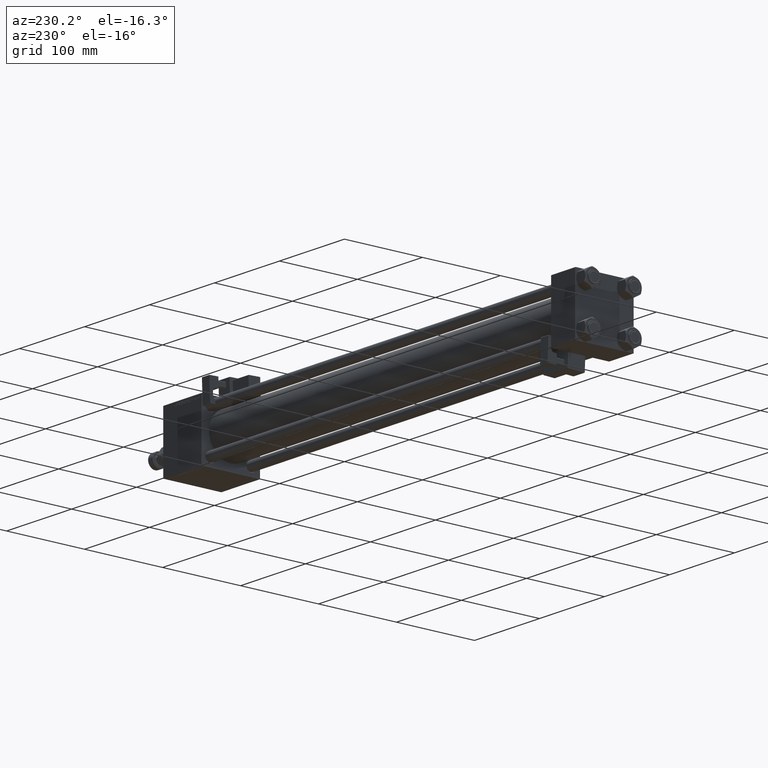
[diagram: clean part render]
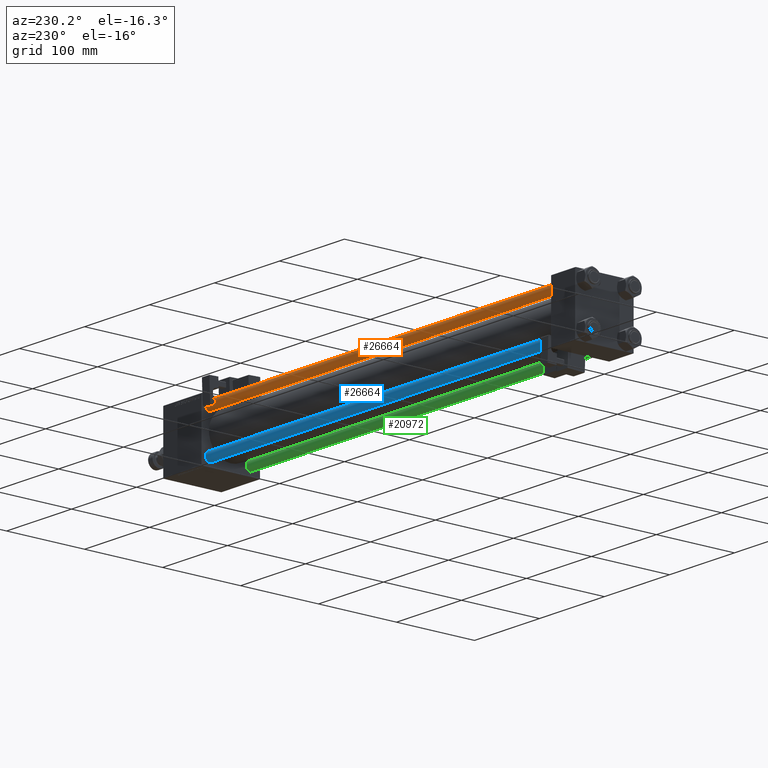
[diagram: same view with three faces highlighted in distinct colors, each labeled with its STEP entity id]
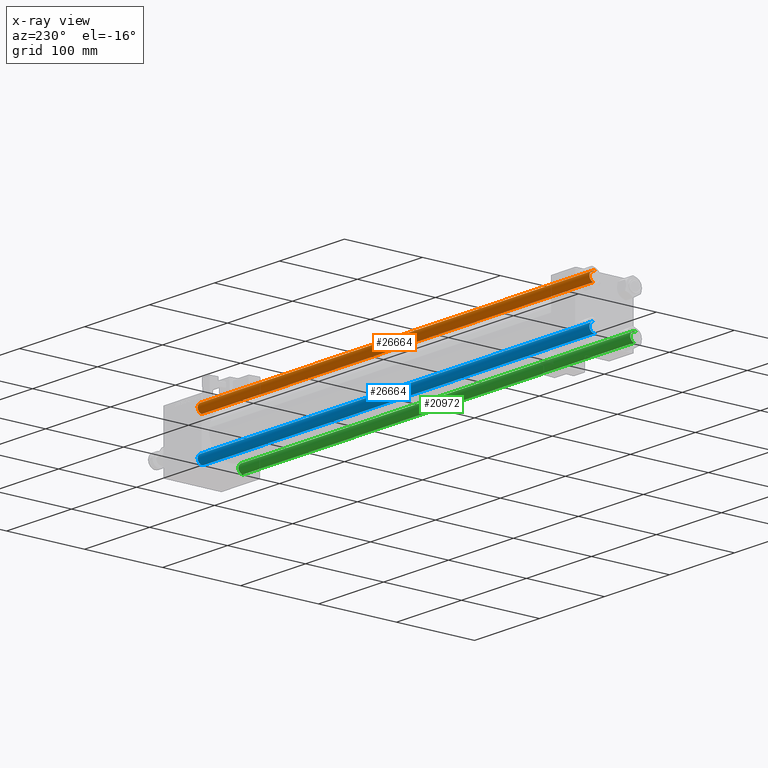
[diagram: x-ray of the same camera — body ghosted, the three highlighted faces saturated]
A machine part, auxiliary view with three faces highlighted in distinct colors.
The next image is the same camera in x-ray (body ghosted, the three faces saturated) — at least one of them is partly hidden behind the body in this view.
Their STEP definitions:

[orange] entity #26664 — the highlighted cylindrical surface (edge-blend (fillet) strip) has radius 6 mm, axis along (-1, 0, 0).
#847 = VECTOR ( 'NONE', #46413, 1000.000000000000000 ) ;
#1131 = AXIS2_PLACEMENT_3D ( 'NONE', #2371, #18821, #52542 ) ;
#2371 = CARTESIAN_POINT ( 'NONE',  ( 0.000000000000000000, 0.000000000000000000, 0.4999999999999449329 ) ) ;
#3285 = VERTEX_POINT ( 'NONE', #34039 ) ;
#12432 = CARTESIAN_POINT ( 'NONE',  ( -6.000000000000000888, 0.000000000000000000, 604.0000000000000000 ) ) ;
#13634 = ORIENTED_EDGE ( 'NONE', *, *, #17876, .F. ) ;
#13709 = CARTESIAN_POINT ( 'NONE',  ( -6.000000000000000888, 0.000000000000000000, 603.5000000000001137 ) ) ;
#17876 = EDGE_CURVE ( 'NONE', #34839, #3285, #53565, .T. ) ;
#17902 = CARTESIAN_POINT ( 'NONE',  ( 6.000000000000000888, 7.347880794884120722E-16, 604.0000000000000000 ) ) ;
#18821 = DIRECTION ( 'NONE',  ( -0.000000000000000000, -0.000000000000000000, 1.000000000000000000 ) ) ;
#19506 = EDGE_CURVE ( 'NONE', #19996, #3285, #29136, .T. ) ;
#19996 = VERTEX_POINT ( 'NONE', #22019 ) ;
#20188 = DIRECTION ( 'NONE',  ( 1.000000000000000000, 0.000000000000000000, 0.000000000000000000 ) ) ;
#21941 = CARTESIAN_POINT ( 'NONE',  ( 6.000000000000000888, 7.347880794884120722E-16, 603.5000000000001137 ) ) ;
#22019 = CARTESIAN_POINT ( 'NONE',  ( 6.000000000000000888, 7.347880794884120722E-16, 0.4999999999999449329 ) ) ;
#24643 = ORIENTED_EDGE ( 'NONE', *, *, #38434, .T. ) ;
#24861 = CARTESIAN_POINT ( 'NONE',  ( 0.000000000000000000, 0.000000000000000000, 604.0000000000000000 ) ) ;
#25529 = ORIENTED_EDGE ( 'NONE', *, *, #19506, .T. ) ;
#26664 = ADVANCED_FACE ( 'NONE', ( #33372 ), #33097, .T. ) ;
#29136 = CIRCLE ( 'NONE', #1131, 6.000000000000000888 ) ;
#29203 = DIRECTION ( 'NONE',  ( 0.000000000000000000, 0.000000000000000000, -1.000000000000000000 ) ) ;
#31353 = VERTEX_POINT ( 'NONE', #21941 ) ;
#32730 = ORIENTED_EDGE ( 'NONE', *, *, #52040, .T. ) ;
#33097 = CYLINDRICAL_SURFACE ( 'NONE', #52938, 6.000000000000000888 ) ;
#33227 = AXIS2_PLACEMENT_3D ( 'NONE', #50038, #29203, #20188 ) ;
#33372 = FACE_OUTER_BOUND ( 'NONE', #44445, .T. ) ;
#34039 = CARTESIAN_POINT ( 'NONE',  ( -6.000000000000000888, 0.000000000000000000, 0.4999999999999449329 ) ) ;
#34839 = VERTEX_POINT ( 'NONE', #13709 ) ;
#37477 = DIRECTION ( 'NONE',  ( -0.000000000000000000, -0.000000000000000000, -1.000000000000000000 ) ) ;
#38434 = EDGE_CURVE ( 'NONE', #31353, #19996, #50524, .T. ) ;
#42033 = DIRECTION ( 'NONE',  ( -0.000000000000000000, -0.000000000000000000, -1.000000000000000000 ) ) ;
#44445 = EDGE_LOOP ( 'NONE', ( #32730, #24643, #25529, #13634 ) ) ;
#46413 = DIRECTION ( 'NONE',  ( -0.000000000000000000, -0.000000000000000000, -1.000000000000000000 ) ) ;
#50038 = CARTESIAN_POINT ( 'NONE',  ( 0.000000000000000000, 0.000000000000000000, 603.5000000000001137 ) ) ;
#50524 = LINE ( 'NONE', #17902, #847 ) ;
#51619 = CIRCLE ( 'NONE', #33227, 6.000000000000000888 ) ;
#52008 = VECTOR ( 'NONE', #42033, 1000.000000000000000 ) ;
#52040 = EDGE_CURVE ( 'NONE', #34839, #31353, #51619, .T. ) ;
#52542 = DIRECTION ( 'NONE',  ( 1.000000000000000000, 0.000000000000000000, 0.000000000000000000 ) ) ;
#52938 = AXIS2_PLACEMENT_3D ( 'NONE', #24861, #37477, #54206 ) ;
#53565 = LINE ( 'NONE', #12432, #52008 ) ;
#54206 = DIRECTION ( 'NONE',  ( -1.000000000000000000, 0.000000000000000000, 0.000000000000000000 ) ) ;

[blue] entity #26664 — the highlighted cylindrical surface (edge-blend (fillet) strip) has radius 6 mm, axis along (1, -0, 0).
#847 = VECTOR ( 'NONE', #46413, 1000.000000000000000 ) ;
#1131 = AXIS2_PLACEMENT_3D ( 'NONE', #2371, #18821, #52542 ) ;
#2371 = CARTESIAN_POINT ( 'NONE',  ( 0.000000000000000000, 0.000000000000000000, 0.4999999999999449329 ) ) ;
#3285 = VERTEX_POINT ( 'NONE', #34039 ) ;
#12432 = CARTESIAN_POINT ( 'NONE',  ( -6.000000000000000888, 0.000000000000000000, 604.0000000000000000 ) ) ;
#13634 = ORIENTED_EDGE ( 'NONE', *, *, #17876, .F. ) ;
#13709 = CARTESIAN_POINT ( 'NONE',  ( -6.000000000000000888, 0.000000000000000000, 603.5000000000001137 ) ) ;
#17876 = EDGE_CURVE ( 'NONE', #34839, #3285, #53565, .T. ) ;
#17902 = CARTESIAN_POINT ( 'NONE',  ( 6.000000000000000888, 7.347880794884120722E-16, 604.0000000000000000 ) ) ;
#18821 = DIRECTION ( 'NONE',  ( -0.000000000000000000, -0.000000000000000000, 1.000000000000000000 ) ) ;
#19506 = EDGE_CURVE ( 'NONE', #19996, #3285, #29136, .T. ) ;
#19996 = VERTEX_POINT ( 'NONE', #22019 ) ;
#20188 = DIRECTION ( 'NONE',  ( 1.000000000000000000, 0.000000000000000000, 0.000000000000000000 ) ) ;
#21941 = CARTESIAN_POINT ( 'NONE',  ( 6.000000000000000888, 7.347880794884120722E-16, 603.5000000000001137 ) ) ;
#22019 = CARTESIAN_POINT ( 'NONE',  ( 6.000000000000000888, 7.347880794884120722E-16, 0.4999999999999449329 ) ) ;
#24643 = ORIENTED_EDGE ( 'NONE', *, *, #38434, .T. ) ;
#24861 = CARTESIAN_POINT ( 'NONE',  ( 0.000000000000000000, 0.000000000000000000, 604.0000000000000000 ) ) ;
#25529 = ORIENTED_EDGE ( 'NONE', *, *, #19506, .T. ) ;
#26664 = ADVANCED_FACE ( 'NONE', ( #33372 ), #33097, .T. ) ;
#29136 = CIRCLE ( 'NONE', #1131, 6.000000000000000888 ) ;
#29203 = DIRECTION ( 'NONE',  ( 0.000000000000000000, 0.000000000000000000, -1.000000000000000000 ) ) ;
#31353 = VERTEX_POINT ( 'NONE', #21941 ) ;
#32730 = ORIENTED_EDGE ( 'NONE', *, *, #52040, .T. ) ;
#33097 = CYLINDRICAL_SURFACE ( 'NONE', #52938, 6.000000000000000888 ) ;
#33227 = AXIS2_PLACEMENT_3D ( 'NONE', #50038, #29203, #20188 ) ;
#33372 = FACE_OUTER_BOUND ( 'NONE', #44445, .T. ) ;
#34039 = CARTESIAN_POINT ( 'NONE',  ( -6.000000000000000888, 0.000000000000000000, 0.4999999999999449329 ) ) ;
#34839 = VERTEX_POINT ( 'NONE', #13709 ) ;
#37477 = DIRECTION ( 'NONE',  ( -0.000000000000000000, -0.000000000000000000, -1.000000000000000000 ) ) ;
#38434 = EDGE_CURVE ( 'NONE', #31353, #19996, #50524, .T. ) ;
#42033 = DIRECTION ( 'NONE',  ( -0.000000000000000000, -0.000000000000000000, -1.000000000000000000 ) ) ;
#44445 = EDGE_LOOP ( 'NONE', ( #32730, #24643, #25529, #13634 ) ) ;
#46413 = DIRECTION ( 'NONE',  ( -0.000000000000000000, -0.000000000000000000, -1.000000000000000000 ) ) ;
#50038 = CARTESIAN_POINT ( 'NONE',  ( 0.000000000000000000, 0.000000000000000000, 603.5000000000001137 ) ) ;
#50524 = LINE ( 'NONE', #17902, #847 ) ;
#51619 = CIRCLE ( 'NONE', #33227, 6.000000000000000888 ) ;
#52008 = VECTOR ( 'NONE', #42033, 1000.000000000000000 ) ;
#52040 = EDGE_CURVE ( 'NONE', #34839, #31353, #51619, .T. ) ;
#52542 = DIRECTION ( 'NONE',  ( 1.000000000000000000, 0.000000000000000000, 0.000000000000000000 ) ) ;
#52938 = AXIS2_PLACEMENT_3D ( 'NONE', #24861, #37477, #54206 ) ;
#53565 = LINE ( 'NONE', #12432, #52008 ) ;
#54206 = DIRECTION ( 'NONE',  ( -1.000000000000000000, 0.000000000000000000, 0.000000000000000000 ) ) ;

[green] entity #20972 — the highlighted cylindrical surface (edge-blend (fillet) strip) has radius 6 mm, axis along (-1, -0, -0).
#847 = VECTOR ( 'NONE', #46413, 1000.000000000000000 ) ;
#3285 = VERTEX_POINT ( 'NONE', #34039 ) ;
#3355 = CARTESIAN_POINT ( 'NONE',  ( 0.000000000000000000, 0.000000000000000000, 0.4999999999999449329 ) ) ;
#7730 = EDGE_CURVE ( 'NONE', #3285, #19996, #29875, .T. ) ;
#9696 = DIRECTION ( 'NONE',  ( -0.000000000000000000, -0.000000000000000000, -1.000000000000000000 ) ) ;
#10483 = CARTESIAN_POINT ( 'NONE',  ( 0.000000000000000000, 0.000000000000000000, 604.0000000000000000 ) ) ;
#12432 = CARTESIAN_POINT ( 'NONE',  ( -6.000000000000000888, 0.000000000000000000, 604.0000000000000000 ) ) ;
#13709 = CARTESIAN_POINT ( 'NONE',  ( -6.000000000000000888, 0.000000000000000000, 603.5000000000001137 ) ) ;
#15427 = DIRECTION ( 'NONE',  ( -0.000000000000000000, -0.000000000000000000, 1.000000000000000000 ) ) ;
#17876 = EDGE_CURVE ( 'NONE', #34839, #3285, #53565, .T. ) ;
#17902 = CARTESIAN_POINT ( 'NONE',  ( 6.000000000000000888, 7.347880794884120722E-16, 604.0000000000000000 ) ) ;
#19996 = VERTEX_POINT ( 'NONE', #22019 ) ;
#20316 = EDGE_CURVE ( 'NONE', #31353, #34839, #45796, .T. ) ;
#20972 = ADVANCED_FACE ( 'NONE', ( #42851 ), #30506, .T. ) ;
#21941 = CARTESIAN_POINT ( 'NONE',  ( 6.000000000000000888, 7.347880794884120722E-16, 603.5000000000001137 ) ) ;
#22019 = CARTESIAN_POINT ( 'NONE',  ( 6.000000000000000888, 7.347880794884120722E-16, 0.4999999999999449329 ) ) ;
#24794 = AXIS2_PLACEMENT_3D ( 'NONE', #10483, #9696, #47212 ) ;
#25225 = DIRECTION ( 'NONE',  ( 0.000000000000000000, 0.000000000000000000, -1.000000000000000000 ) ) ;
#25643 = ORIENTED_EDGE ( 'NONE', *, *, #20316, .T. ) ;
#26561 = AXIS2_PLACEMENT_3D ( 'NONE', #46053, #25225, #41956 ) ;
#27692 = ORIENTED_EDGE ( 'NONE', *, *, #17876, .T. ) ;
#29000 = AXIS2_PLACEMENT_3D ( 'NONE', #3355, #15427, #44473 ) ;
#29875 = CIRCLE ( 'NONE', #29000, 6.000000000000000888 ) ;
#30506 = CYLINDRICAL_SURFACE ( 'NONE', #24794, 6.000000000000000888 ) ;
#31353 = VERTEX_POINT ( 'NONE', #21941 ) ;
#34039 = CARTESIAN_POINT ( 'NONE',  ( -6.000000000000000888, 0.000000000000000000, 0.4999999999999449329 ) ) ;
#34839 = VERTEX_POINT ( 'NONE', #13709 ) ;
#38434 = EDGE_CURVE ( 'NONE', #31353, #19996, #50524, .T. ) ;
#41956 = DIRECTION ( 'NONE',  ( 1.000000000000000000, 0.000000000000000000, 0.000000000000000000 ) ) ;
#42033 = DIRECTION ( 'NONE',  ( -0.000000000000000000, -0.000000000000000000, -1.000000000000000000 ) ) ;
#42851 = FACE_OUTER_BOUND ( 'NONE', #44082, .T. ) ;
#44082 = EDGE_LOOP ( 'NONE', ( #52368, #25643, #27692, #48100 ) ) ;
#44473 = DIRECTION ( 'NONE',  ( 1.000000000000000000, 0.000000000000000000, 0.000000000000000000 ) ) ;
#45796 = CIRCLE ( 'NONE', #26561, 6.000000000000000888 ) ;
#46053 = CARTESIAN_POINT ( 'NONE',  ( 0.000000000000000000, 0.000000000000000000, 603.5000000000001137 ) ) ;
#46413 = DIRECTION ( 'NONE',  ( -0.000000000000000000, -0.000000000000000000, -1.000000000000000000 ) ) ;
#47212 = DIRECTION ( 'NONE',  ( -1.000000000000000000, 0.000000000000000000, 0.000000000000000000 ) ) ;
#48100 = ORIENTED_EDGE ( 'NONE', *, *, #7730, .T. ) ;
#50524 = LINE ( 'NONE', #17902, #847 ) ;
#52008 = VECTOR ( 'NONE', #42033, 1000.000000000000000 ) ;
#52368 = ORIENTED_EDGE ( 'NONE', *, *, #38434, .F. ) ;
#53565 = LINE ( 'NONE', #12432, #52008 ) ;